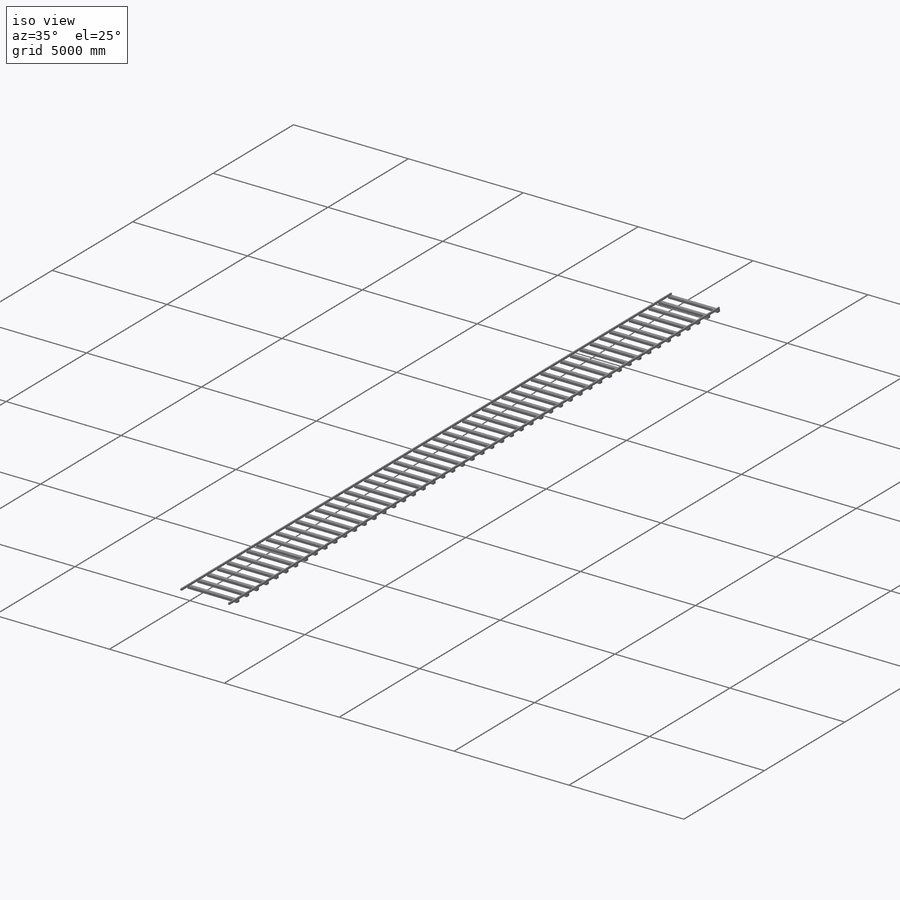
[diagram: iso view]
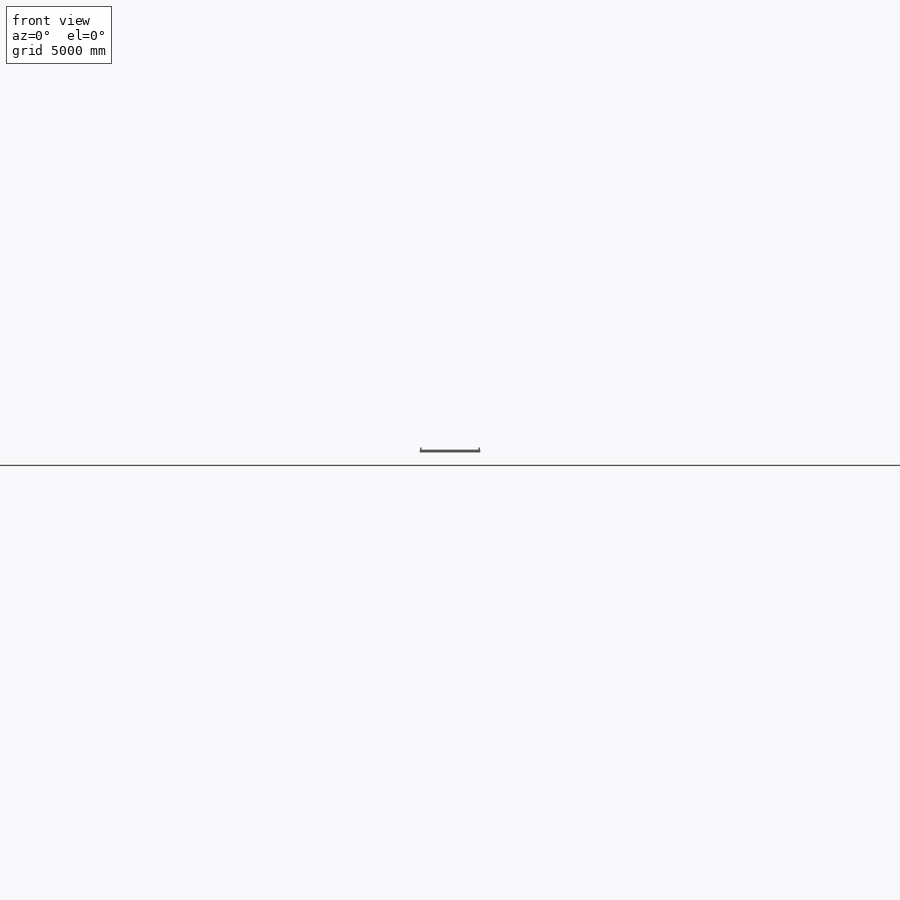
[diagram: front view]
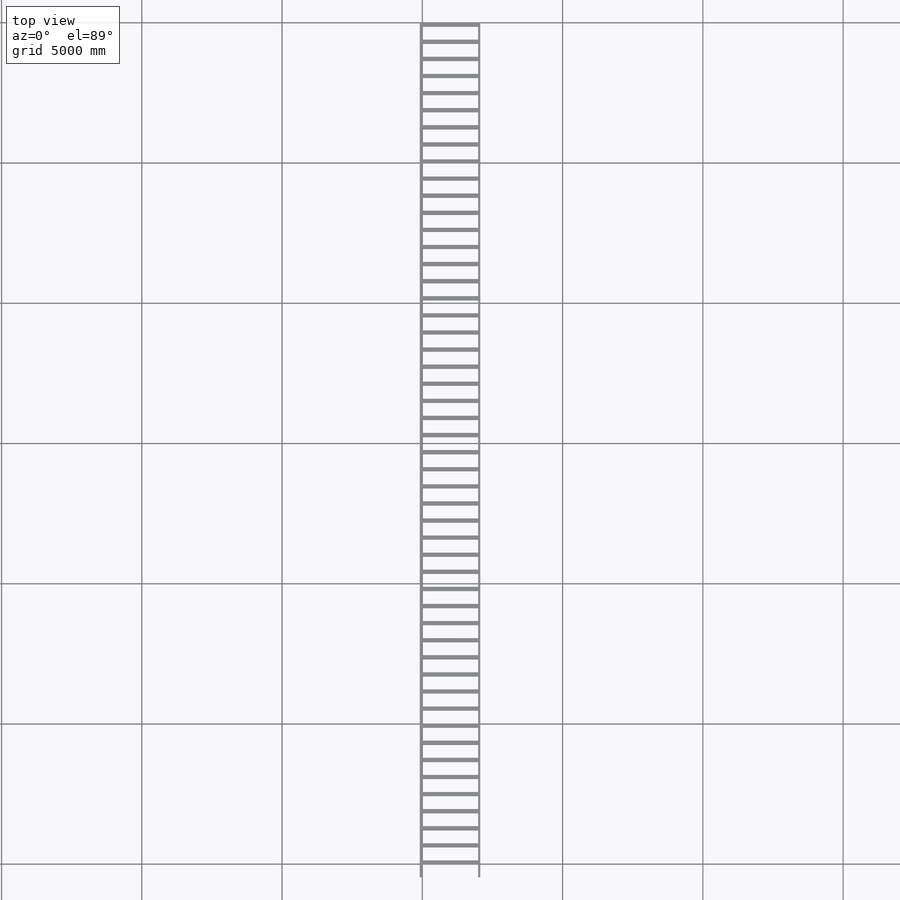
[diagram: top view]
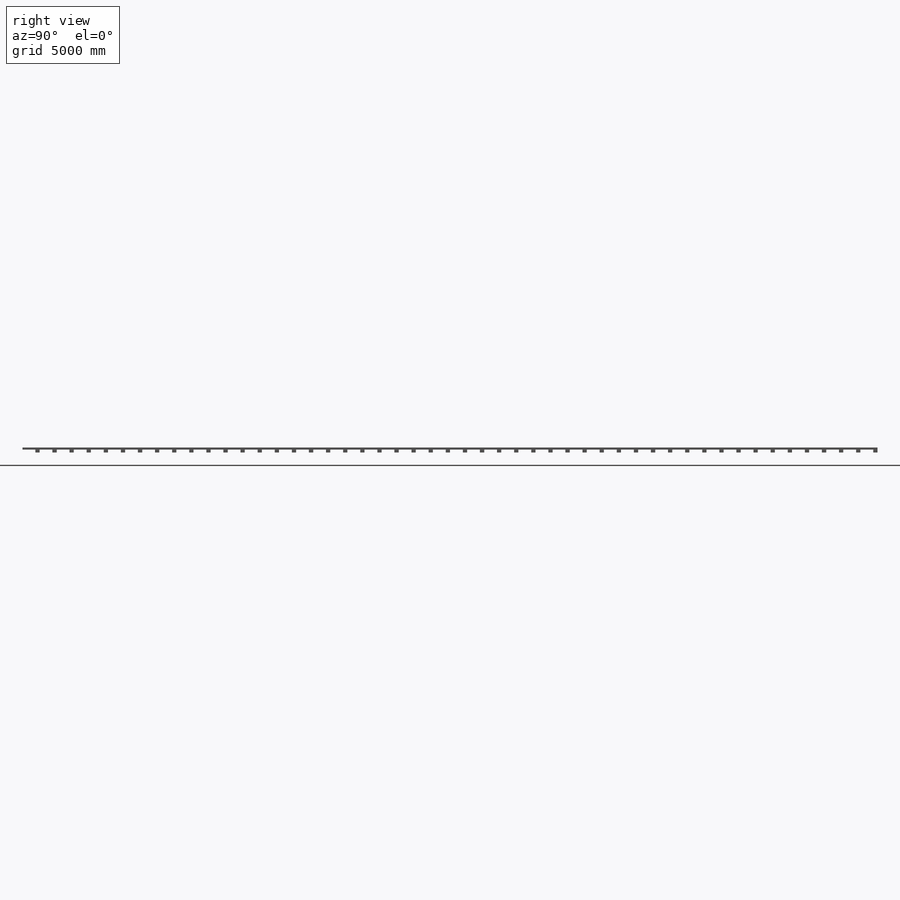
[diagram: right view]
SOLIDWORKS PART (.sldprt)
format: sldprt  version: not decoded by parser v0  size: 340,480 bytes
history: native  units: mm
features: sketch x2, extrude x2, material x1, pattern_linear x1 (+12 scaffold rows collapsed)
feature tree (18):
  scaffold x12  (default folders/planes/origin — collapsed)
  material  "Material <not specified>"
  sketch  "Sketch1"  dims[D1=76.2mm D2=76.2mm D3=50.8mm D4=50.8mm D5=76.2mm D6=2032.0mm D7=76.2mm]
  extrude  "Boss-Extrude1"  Depth=30480mm
  sketch  "Sketch2"  dims[D1=152.4mm]
  extrude  "Boss-Extrude3"  Depth=101.6mm
  pattern_linear  "LPattern1"  Count1=50 Count2=1 Spacing1=609.6mm Spacing2=10mm
decode coverage: 5 of 5 modeling features carry decoded parameters
note: suppression state not decoded; provenance and decode notes live in map.json
